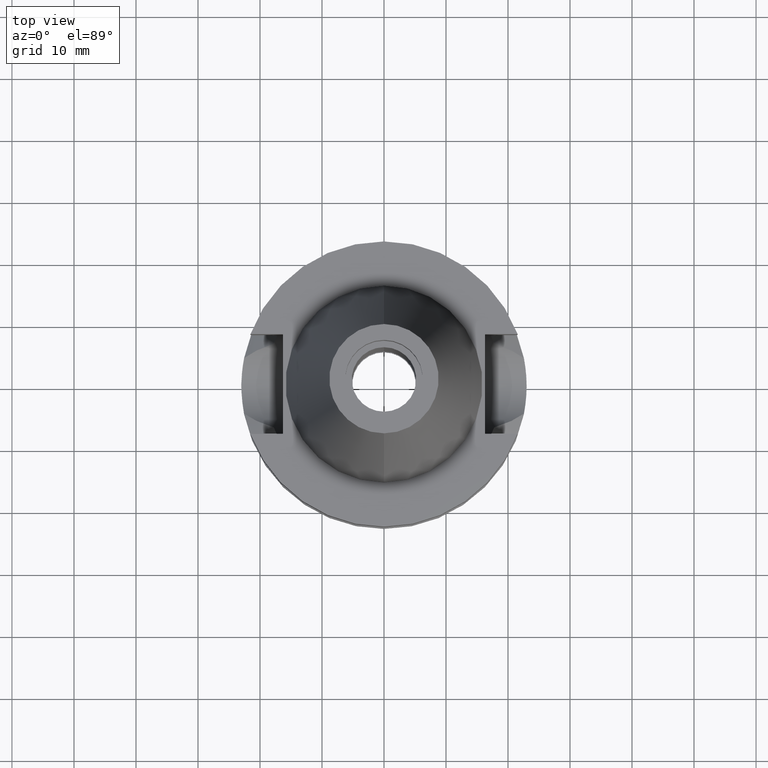
[diagram: clean part render]
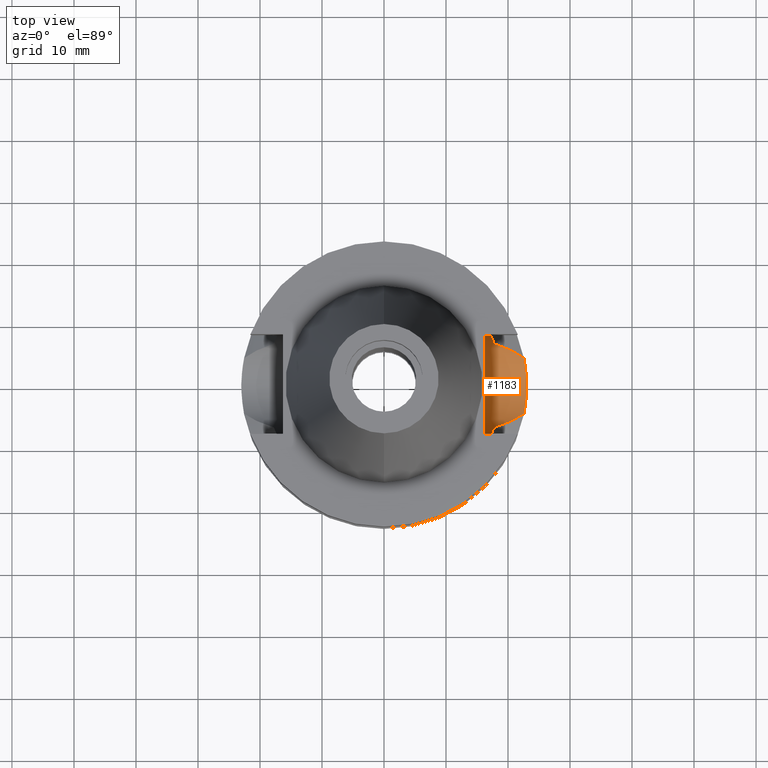
[diagram: same view with one face highlighted and labeled with its STEP entity id]
A machine part, top view. The second image highlights one B-rep face of the part: STEP entity #1183.
In plain terms, the highlighted cylindrical surface (partial cylindrical patch) has radius 8.05 mm, axis along (1, 0, 0).
Its self-contained STEP definition (entity closure, byte-faithful):
#75 = EDGE_CURVE ( 'NONE', #1460, #1548, #3033, .T. ) ;
#104 = B_SPLINE_CURVE_WITH_KNOTS ( 'NONE', 3,
 ( #1667, #548, #2392, #317 ),
 .UNSPECIFIED., .F., .F.,
 ( 4, 4 ),
 ( 0.0000000000000000000, 1.000000000000000000 ),
 .UNSPECIFIED. ) ;
#106 = CARTESIAN_POINT ( 'NONE',  ( 20.88308048596598709, 5.506578585674882120, -16.82260079039525991 ) ) ;
#114 = VERTEX_POINT ( 'NONE', #1544 ) ;
#116 = CARTESIAN_POINT ( 'NONE',  ( 17.42519596513088231, 7.573974453343875091, -13.67717551128427189 ) ) ;
#134 = CARTESIAN_POINT ( 'NONE',  ( 22.98995836557874739, -0.7843392692817930945, -18.97134382188604107 ) ) ;
#177 = EDGE_CURVE ( 'NONE', #1424, #1460, #2268, .T. ) ;
#195 = B_SPLINE_CURVE_WITH_KNOTS ( 'NONE', 3,
 ( #326, #545, #562, #2444 ),
 .UNSPECIFIED., .F., .F.,
 ( 4, 4 ),
 ( 0.0000000000000000000, 1.000000000000000000 ),
 .UNSPECIFIED. ) ;
#201 = CARTESIAN_POINT ( 'NONE',  ( 17.41448236947442396, -7.598575320532288124, -13.60786581927522576 ) ) ;
#209 = CARTESIAN_POINT ( 'NONE',  ( 17.47447672647398420, 7.459902742170481993, -13.97618157011898532 ) ) ;
#217 = CARTESIAN_POINT ( 'NONE',  ( 22.79383355051302118, 3.078315225049684578, -18.39085367476280197 ) ) ;
#228 = VERTEX_POINT ( 'NONE', #2818 ) ;
#259 = CARTESIAN_POINT ( 'NONE',  ( 17.33749705518706463, -7.773004237839905350, -13.04926595492102770 ) ) ;
#264 = EDGE_CURVE ( 'NONE', #1659, #1788, #2774, .T. ) ;
#266 = CARTESIAN_POINT ( 'NONE',  ( 22.62310124107877485, 4.150502759624608906, -17.85045619107866344 ) ) ;
#297 = AXIS2_PLACEMENT_3D ( 'NONE', #3065, #1176, #2038 ) ;
#316 = ORIENTED_EDGE ( 'NONE', *, *, #667, .F. ) ;
#317 = CARTESIAN_POINT ( 'NONE',  ( 17.23531135316000018, -7.996501749113000379, -11.87660739352000050 ) ) ;
#326 = CARTESIAN_POINT ( 'NONE',  ( 17.23531622907000482, 7.996491146279001150, -11.87660607779999999 ) ) ;
#346 = CARTESIAN_POINT ( 'NONE',  ( 20.50401121620501854, -5.694633743155140593, -16.63981131308070616 ) ) ;
#351 = CARTESIAN_POINT ( 'NONE',  ( 21.96050657604692447, 4.898271418466006999, -17.34331467499105983 ) ) ;
#381 = VERTEX_POINT ( 'NONE', #1476 ) ;
#402 = CARTESIAN_POINT ( 'NONE',  ( 17.75736593456000278, -6.758398853743999624, -15.32339055352999857 ) ) ;
#404 = LINE ( 'NONE', #2074, #418 ) ;
#416 = CARTESIAN_POINT ( 'NONE',  ( 17.62109728943909204, 7.108454003996516057, -14.74079473632578896 ) ) ;
#418 = VECTOR ( 'NONE', #2348, 1000.000000000000000 ) ;
#419 = CARTESIAN_POINT ( 'NONE',  ( 21.20073025855661797, 5.340384609172256880, -16.97593589100117839 ) ) ;
#454 = DIRECTION ( 'NONE',  ( 0.0000000000000000000, 1.000000000000000000, 0.0000000000000000000 ) ) ;
#493 = B_SPLINE_CURVE_WITH_KNOTS ( 'NONE', 3,
 ( #2724, #1736, #1782, #2460, #618, #1545, #885, #2231, #1323, #346, #2263, #1058, #1800, #652 ),
 .UNSPECIFIED., .F., .F.,
 ( 4, 2, 2, 1, 1, 2, 2, 4 ),
 ( 0.0000000000000000000, 0.2500000000000093259, 0.3750000000000148770, 0.4375000000000168754, 0.4687500000000178191, 0.4843750000000170974, 0.5000000000000164313, 1.000000000000000000 ),
 .UNSPECIFIED. ) ;
#545 = CARTESIAN_POINT ( 'NONE',  ( 17.72598986851142655, 8.027133616167654750, -11.61218197892570814 ) ) ;
#548 = CARTESIAN_POINT ( 'NONE',  ( 18.30417678393352077, -8.050000009833846448, -11.30245973461695819 ) ) ;
#562 = CARTESIAN_POINT ( 'NONE',  ( 18.30334768058809303, 8.049999956193227391, -11.30291651749210047 ) ) ;
#597 = CARTESIAN_POINT ( 'NONE',  ( 20.60267411268920057, 5.646715687876686651, -16.68736579023017441 ) ) ;
#618 = CARTESIAN_POINT ( 'NONE',  ( 19.70226252926495292, -6.057253226929671719, -16.25399263439647868 ) ) ;
#633 = CARTESIAN_POINT ( 'NONE',  ( 22.94992847154027871, -1.566574891783574008, -18.85597573331736854 ) ) ;
#635 = CARTESIAN_POINT ( 'NONE',  ( 17.68525611696773225, 6.947863909910698688, -15.03060160574557713 ) ) ;
#643 = FACE_OUTER_BOUND ( 'NONE', #2732, .T. ) ;
#652 = CARTESIAN_POINT ( 'NONE',  ( 22.55786346208000026, -4.488072640470000430, -17.63279163029000074 ) ) ;
#656 = CARTESIAN_POINT ( 'NONE',  ( 16.29999999999999716, -8.050000000000000711, -10.94999999999999929 ) ) ;
#661 = CARTESIAN_POINT ( 'NONE',  ( 17.75736593456000278, -6.758398853743999624, -15.32339055352999857 ) ) ;
#667 = EDGE_CURVE ( 'NONE', #2083, #114, #1920, .T. ) ;
#674 = CARTESIAN_POINT ( 'NONE',  ( 22.55786346208000026, -4.488072640470000430, -17.63279163029000074 ) ) ;
#696 = ORIENTED_EDGE ( 'NONE', *, *, #2895, .F. ) ;
#711 = CARTESIAN_POINT ( 'NONE',  ( 17.38150961878123013, -7.673851445194437737, -13.38418433672623742 ) ) ;
#742 = CARTESIAN_POINT ( 'NONE',  ( 22.71385684287556472, 3.621312071679509526, -18.14216954094995060 ) ) ;
#750 = EDGE_CURVE ( 'NONE', #1548, #228, #195, .T. ) ;
#834 = CARTESIAN_POINT ( 'NONE',  ( 17.23531622907000482, 7.996491146279001150, -11.87660607779999999 ) ) ;
#864 = ORIENTED_EDGE ( 'NONE', *, *, #75, .T. ) ;
#867 = CARTESIAN_POINT ( 'NONE',  ( 22.84079056710278621, -2.707979719164963051, -18.53352870095185878 ) ) ;
#880 = CARTESIAN_POINT ( 'NONE',  ( 17.42904452100490786, 7.565124676941863413, -13.70171207084216647 ) ) ;
#885 = CARTESIAN_POINT ( 'NONE',  ( 20.19153038979839820, -5.841858521801971627, -16.48930123571699369 ) ) ;
#894 = ORIENTED_EDGE ( 'NONE', *, *, #1419, .F. ) ;
#945 = CYLINDRICAL_SURFACE ( 'NONE', #297, 8.050000000000000711 ) ;
#1045 = CARTESIAN_POINT ( 'NONE',  ( 16.29999999999999716, 8.050000000000000711, -10.94999999999999929 ) ) ;
#1058 = CARTESIAN_POINT ( 'NONE',  ( 21.31631661974315506, -5.300112642608965530, -17.03133332296672364 ) ) ;
#1072 = CARTESIAN_POINT ( 'NONE',  ( 17.40044238433036128, -7.630712768937988777, -13.51465132387822266 ) ) ;
#1093 = EDGE_CURVE ( 'NONE', #1424, #2083, #1893, .T. ) ;
#1094 = CARTESIAN_POINT ( 'NONE',  ( 23.00000000000723333, -0.3931911481576128575, -19.00000000000000355 ) ) ;
#1106 = CARTESIAN_POINT ( 'NONE',  ( 17.41022320782343513, -7.608337958419101099, -13.57990024109255245 ) ) ;
#1150 = CARTESIAN_POINT ( 'NONE',  ( 18.96736186668000101, -8.050001277885000306, -10.94999977540000025 ) ) ;
#1153 = VECTOR ( 'NONE', #2865, 1000.000000000000114 ) ;
#1158 = CARTESIAN_POINT ( 'NONE',  ( 17.27394636237350767, -7.913402763686674390, -12.45748919298653057 ) ) ;
#1159 = EDGE_CURVE ( 'NONE', #381, #1261, #2450, .T. ) ;
#1176 = DIRECTION ( 'NONE',  ( 1.000000000000000000, 0.0000000000000000000, 0.0000000000000000000 ) ) ;
#1183 = ADVANCED_FACE ( 'NONE', ( #643 ), #945, .F. ) ;
#1187 = CARTESIAN_POINT ( 'NONE',  ( 20.58071370376286069, 5.657455445777950231, -16.67677945143267237 ) ) ;
#1191 = ORIENTED_EDGE ( 'NONE', *, *, #177, .T. ) ;
#1195 = CARTESIAN_POINT ( 'NONE',  ( 16.29999999999999716, 0.0000000000000000000, -10.94999999999999929 ) ) ;
#1196 = CARTESIAN_POINT ( 'NONE',  ( 17.75736593456000278, 6.758398853743999624, -15.32339055352999857 ) ) ;
#1261 = VERTEX_POINT ( 'NONE', #661 ) ;
#1323 = CARTESIAN_POINT ( 'NONE',  ( 20.45251596850605935, -5.719317997126709407, -16.61499849028090026 ) ) ;
#1368 = CARTESIAN_POINT ( 'NONE',  ( 17.41895439078623298, -7.588315328362104317, -13.63701416027406665 ) ) ;
#1388 = CARTESIAN_POINT ( 'NONE',  ( 17.45712581401693342, 7.500313914456921083, -13.87517845134916783 ) ) ;
#1419 = EDGE_CURVE ( 'NONE', #2420, #1788, #1440, .T. ) ;
#1424 = VERTEX_POINT ( 'NONE', #2409 ) ;
#1440 = LINE ( 'NONE', #2400, #1153 ) ;
#1442 = AXIS2_PLACEMENT_3D ( 'NONE', #1195, #2625, #454 ) ;
#1450 = ORIENTED_EDGE ( 'NONE', *, *, #750, .T. ) ;
#1452 = CARTESIAN_POINT ( 'NONE',  ( 17.75736593456000278, 6.758398853743999624, -15.32339055352999857 ) ) ;
#1460 = VERTEX_POINT ( 'NONE', #1196 ) ;
#1476 = CARTESIAN_POINT ( 'NONE',  ( 17.23531135316000018, -7.996501749113000379, -11.87660739352000050 ) ) ;
#1544 = CARTESIAN_POINT ( 'NONE',  ( 22.55786346208000026, -4.488072640470000430, -17.63279163029000074 ) ) ;
#1545 = CARTESIAN_POINT ( 'NONE',  ( 20.03025237532184732, -5.914163211905716366, -16.41170414185550896 ) ) ;
#1548 = VERTEX_POINT ( 'NONE', #834 ) ;
#1570 = ORIENTED_EDGE ( 'NONE', *, *, #264, .T. ) ;
#1646 = CARTESIAN_POINT ( 'NONE',  ( 22.99999999998553335, 0.7863138039261430290, -19.00000000000000355 ) ) ;
#1659 = VERTEX_POINT ( 'NONE', #1045 ) ;
#1667 = CARTESIAN_POINT ( 'NONE',  ( 18.96736186668000101, -8.050001277885000306, -10.94999977540000025 ) ) ;
#1671 = CARTESIAN_POINT ( 'NONE',  ( 23.00000000000000000, 4.232519921043999887E-10, -19.00000000000000000 ) ) ;
#1686 = ORIENTED_EDGE ( 'NONE', *, *, #1093, .F. ) ;
#1736 = CARTESIAN_POINT ( 'NONE',  ( 18.28162680296246734, -6.596815326894484244, -15.57309290900918874 ) ) ;
#1750 = CARTESIAN_POINT ( 'NONE',  ( 20.64988077289536150, 5.623497322798532316, -16.71012518363047406 ) ) ;
#1781 = CARTESIAN_POINT ( 'NONE',  ( 17.42156015895051269, 7.582330336620267452, -13.65386102521388167 ) ) ;
#1782 = CARTESIAN_POINT ( 'NONE',  ( 18.77690731347827224, -6.423841684040871414, -15.81003598776193897 ) ) ;
#1783 = CARTESIAN_POINT ( 'NONE',  ( 22.79381226286461271, -3.078472090980107101, -18.39078719136217188 ) ) ;
#1788 = VERTEX_POINT ( 'NONE', #656 ) ;
#1793 = CARTESIAN_POINT ( 'NONE',  ( 17.41733678394264118, -7.592028263063928861, -13.62650975486966765 ) ) ;
#1800 = CARTESIAN_POINT ( 'NONE',  ( 21.98388215699148418, -4.902505725805879955, -17.35446396507062872 ) ) ;
#1843 = CARTESIAN_POINT ( 'NONE',  ( 22.95874426753883668, 1.573051968706697945, -18.88435296437215527 ) ) ;
#1848 = CARTESIAN_POINT ( 'NONE',  ( 17.61319088175535086, -7.137211828027411720, -14.73799367670391369 ) ) ;
#1862 = CARTESIAN_POINT ( 'NONE',  ( 18.80592911135740053, 6.435219027734473407, -15.82281500211855985 ) ) ;
#1873 = CARTESIAN_POINT ( 'NONE',  ( 22.86244889163762295, 2.518845490430802414, -18.59839467765815257 ) ) ;
#1893 = B_SPLINE_CURVE_WITH_KNOTS ( 'NONE', 3,
 ( #2380, #2614, #266, #2850, #742, #2355, #217, #2112, #1873, #1843, #1646, #1671 ),
 .UNSPECIFIED., .F., .F.,
 ( 4, 2, 2, 2, 2, 4 ),
 ( 0.0000000000000000000, 0.1250000000000001665, 0.2500000000000001110, 0.3750000000000000555, 0.5000000000000000000, 1.000000000000000000 ),
 .UNSPECIFIED. ) ;
#1920 = B_SPLINE_CURVE_WITH_KNOTS ( 'NONE', 3,
 ( #2264, #1094, #134, #633, #2022, #2048, #867, #1783, #2308, #3031, #3012, #674 ),
 .UNSPECIFIED., .F., .F.,
 ( 4, 2, 2, 2, 2, 4 ),
 ( 0.0000000000000000000, 0.2500000000000002776, 0.5000000000000004441, 0.6250000000000006661, 0.7500000000000008882, 1.000000000000000000 ),
 .UNSPECIFIED. ) ;
#1946 = CARTESIAN_POINT ( 'NONE',  ( 23.00000000000000000, 4.232519921043999887E-10, -19.00000000000000000 ) ) ;
#1960 = ORIENTED_EDGE ( 'NONE', *, *, #2584, .T. ) ;
#1993 = CARTESIAN_POINT ( 'NONE',  ( 17.23531622907000482, 7.996491146279001150, -11.87660607779999999 ) ) ;
#2022 = CARTESIAN_POINT ( 'NONE',  ( 22.92042989842834544, -1.949409637206165113, -18.77057097035693189 ) ) ;
#2038 = DIRECTION ( 'NONE',  ( 0.0000000000000000000, 0.0000000000000000000, -1.000000000000000000 ) ) ;
#2048 = CARTESIAN_POINT ( 'NONE',  ( 22.86230834354261532, -2.520205025465598769, -18.59797934863608759 ) ) ;
#2074 = CARTESIAN_POINT ( 'NONE',  ( 16.29999999999999716, 8.050000000000000711, -10.94999999999999929 ) ) ;
#2083 = VERTEX_POINT ( 'NONE', #1946 ) ;
#2107 = CARTESIAN_POINT ( 'NONE',  ( 17.53678553324159850, 7.312898235680678205, -14.31874682330845516 ) ) ;
#2112 = CARTESIAN_POINT ( 'NONE',  ( 22.84081224508685182, 2.707797728405240356, -18.53359268873723664 ) ) ;
#2114 = CARTESIAN_POINT ( 'NONE',  ( 19.73853821126850150, 6.066573924236746684, -16.27085587920493026 ) ) ;
#2161 = ORIENTED_EDGE ( 'NONE', *, *, #1159, .T. ) ;
#2219 = EDGE_CURVE ( 'NONE', #1261, #114, #493, .T. ) ;
#2220 = CARTESIAN_POINT ( 'NONE',  ( 17.23531135316000018, -7.996501749113000379, -11.87660739352000050 ) ) ;
#2231 = CARTESIAN_POINT ( 'NONE',  ( 20.37493348338862731, -5.756260175061492568, -16.57762116208457570 ) ) ;
#2262 = CARTESIAN_POINT ( 'NONE',  ( 17.42264579049234996, 7.579835985886259841, -13.66084151442277950 ) ) ;
#2263 = CARTESIAN_POINT ( 'NONE',  ( 20.53138092004099846, -5.681420578161565871, -16.65300141717032290 ) ) ;
#2264 = CARTESIAN_POINT ( 'NONE',  ( 23.00000000000000000, 4.232519921043999887E-10, -19.00000000000000000 ) ) ;
#2268 = B_SPLINE_CURVE_WITH_KNOTS ( 'NONE', 3,
 ( #2700, #2469, #351, #2715, #419, #106, #2959, #1750, #597, #1187, #2114, #1862, #1452 ),
 .UNSPECIFIED., .F., .F.,
 ( 4, 2, 1, 1, 1, 2, 2, 4 ),
 ( 0.0000000000000000000, 0.2500000000000119904, 0.3750000000000179856, 0.4375000000000218714, 0.4687500000000239253, 0.4843750000000243139, 0.5000000000000246470, 1.000000000000000000 ),
 .UNSPECIFIED. ) ;
#2308 = CARTESIAN_POINT ( 'NONE',  ( 22.76863498825484911, -3.259318128265310310, -18.31338158796291182 ) ) ;
#2334 = CARTESIAN_POINT ( 'NONE',  ( 17.43818754212435351, 7.544069795733739703, -13.75921087035756507 ) ) ;
#2348 = DIRECTION ( 'NONE',  ( 0.9999999999976612042, -2.130104031153920346E-06, -3.746083735727856140E-07 ) ) ;
#2355 = CARTESIAN_POINT ( 'NONE',  ( 22.76837446587207126, 3.261030202399505029, -18.31256904520534690 ) ) ;
#2380 = CARTESIAN_POINT ( 'NONE',  ( 22.55786346208000026, 4.488072640470000430, -17.63279163029000074 ) ) ;
#2392 = CARTESIAN_POINT ( 'NONE',  ( 17.72682661276018834, -8.027186147357568302, -11.61172866641854284 ) ) ;
#2400 = CARTESIAN_POINT ( 'NONE',  ( 18.96736186668000101, -8.050001277885000306, -10.94999977540000025 ) ) ;
#2409 = CARTESIAN_POINT ( 'NONE',  ( 22.55786346208000026, 4.488072640470000430, -17.63279163029000074 ) ) ;
#2420 = VERTEX_POINT ( 'NONE', #1150 ) ;
#2442 = ORIENTED_EDGE ( 'NONE', *, *, #2219, .T. ) ;
#2444 = CARTESIAN_POINT ( 'NONE',  ( 18.96738966530000070, 8.049994318182998043, -10.95000099923000114 ) ) ;
#2450 = B_SPLINE_CURVE_WITH_KNOTS ( 'NONE', 3,
 ( #2220, #2464, #1158, #2804, #259, #2915, #711, #1072, #1106, #201, #1793, #1368, #2769, #1848, #402 ),
 .UNSPECIFIED., .F., .F.,
 ( 4, 2, 2, 1, 1, 1, 2, 2, 4 ),
 ( 0.0000000000000000000, 0.2500000000000191513, 0.3750000000000281442, 0.4375000000000326406, 0.4687500000000348610, 0.4843750000000359157, 0.4921875000000360267, 0.5000000000000360822, 1.000000000000000000 ),
 .UNSPECIFIED. ) ;
#2460 = CARTESIAN_POINT ( 'NONE',  ( 19.47635754242202566, -6.150621144567203658, -16.14549395938378495 ) ) ;
#2464 = CARTESIAN_POINT ( 'NONE',  ( 17.25079567567443917, -7.963118628078221128, -12.16462305681666756 ) ) ;
#2469 = CARTESIAN_POINT ( 'NONE',  ( 22.27088499515720699, 4.695280384725019296, -17.49363370657529160 ) ) ;
#2475 = CARTESIAN_POINT ( 'NONE',  ( 17.26627806865083059, 7.929758636640294789, -12.45251551473453588 ) ) ;
#2584 = EDGE_CURVE ( 'NONE', #2420, #381, #104, .T. ) ;
#2614 = CARTESIAN_POINT ( 'NONE',  ( 22.59106657759191705, 4.321187786720205537, -17.74486924510534891 ) ) ;
#2625 = DIRECTION ( 'NONE',  ( -1.000000000000000000, 0.0000000000000000000, 0.0000000000000000000 ) ) ;
#2700 = CARTESIAN_POINT ( 'NONE',  ( 22.55786346208000026, 4.488072640470000430, -17.63279163029000074 ) ) ;
#2715 = CARTESIAN_POINT ( 'NONE',  ( 21.45983901910027214, 5.194406469491375411, -17.10117064348814964 ) ) ;
#2724 = CARTESIAN_POINT ( 'NONE',  ( 17.75736593456000278, -6.758398853743999624, -15.32339055352999857 ) ) ;
#2732 = EDGE_LOOP ( 'NONE', ( #1191, #864, #1450, #696, #1570, #894, #1960, #2161, #2442, #316, #1686 ) ) ;
#2743 = CARTESIAN_POINT ( 'NONE',  ( 17.75736593456000278, 6.758398853743999624, -15.32339055352999857 ) ) ;
#2769 = CARTESIAN_POINT ( 'NONE',  ( 17.50080678972274129, -7.400327745706038129, -14.16609910707959763 ) ) ;
#2774 = CIRCLE ( 'NONE', #1442, 8.050000000000000711 ) ;
#2804 = CARTESIAN_POINT ( 'NONE',  ( 17.32017193869905469, -7.811515975126495981, -12.90082288077809025 ) ) ;
#2818 = CARTESIAN_POINT ( 'NONE',  ( 18.96738966530000070, 8.049994318182998043, -10.95000099923000114 ) ) ;
#2850 = CARTESIAN_POINT ( 'NONE',  ( 22.68434997914057050, 3.801532447002946125, -18.04864874534121100 ) ) ;
#2865 = DIRECTION ( 'NONE',  ( -0.9999999999998816502, 4.790819009220908488E-07, -8.420381908810846910E-08 ) ) ;
#2895 = EDGE_CURVE ( 'NONE', #1659, #228, #404, .T. ) ;
#2915 = CARTESIAN_POINT ( 'NONE',  ( 17.36635961648830317, -7.708092773765561567, -13.27245751280083041 ) ) ;
#2959 = CARTESIAN_POINT ( 'NONE',  ( 20.72041654501491337, 5.588589045381048948, -16.74413654259232942 ) ) ;
#3012 = CARTESIAN_POINT ( 'NONE',  ( 22.62426420320401022, -4.154330526195971096, -17.85692832867927393 ) ) ;
#3027 = CARTESIAN_POINT ( 'NONE',  ( 17.32787896221750401, 7.797470577428629923, -13.04820123578273616 ) ) ;
#3031 = CARTESIAN_POINT ( 'NONE',  ( 22.68599641825596080, -3.805409579712057955, -18.05509290539615463 ) ) ;
#3033 = B_SPLINE_CURVE_WITH_KNOTS ( 'NONE', 3,
 ( #2743, #635, #416, #2107, #3076, #209, #1388, #2334, #880, #116, #2262, #1781, #3027, #2475, #1993 ),
 .UNSPECIFIED., .F., .F.,
 ( 4, 2, 2, 1, 1, 1, 2, 2, 4 ),
 ( 0.0000000000000000000, 0.2499999999999920619, 0.3749999999999872879, 0.4374999999999854006, 0.4687499999999852340, 0.4843749999999858447, 0.4921874999999860112, 0.4999999999999862332, 1.000000000000000000 ),
 .UNSPECIFIED. ) ;
#3065 = CARTESIAN_POINT ( 'NONE',  ( 23.00000000000000000, 0.0000000000000000000, -10.94999999999999929 ) ) ;
#3076 = CARTESIAN_POINT ( 'NONE',  ( 17.51066936202501267, 7.374980357721100610, -14.18014860263578036 ) ) ;